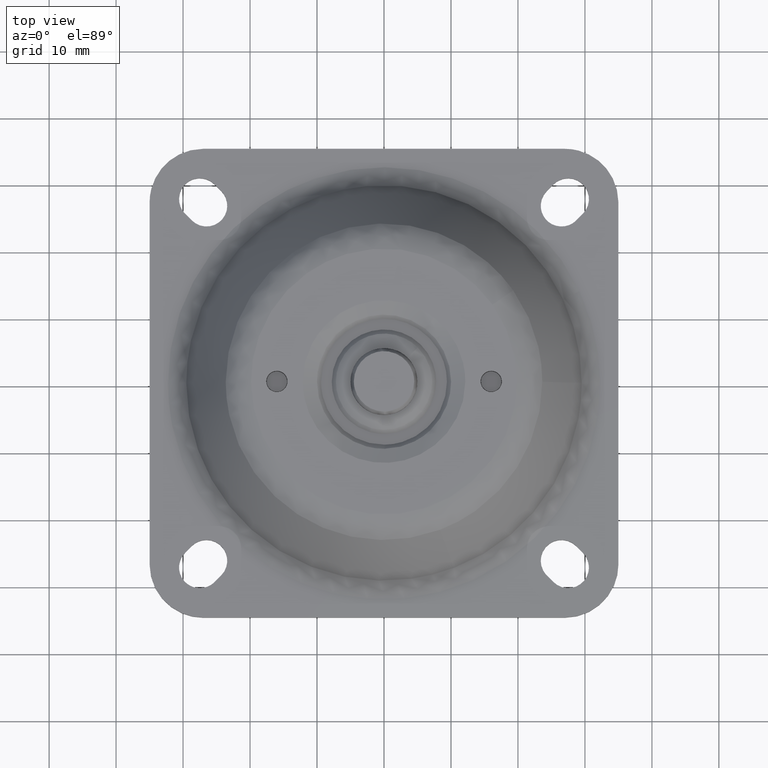
[diagram: clean part render]
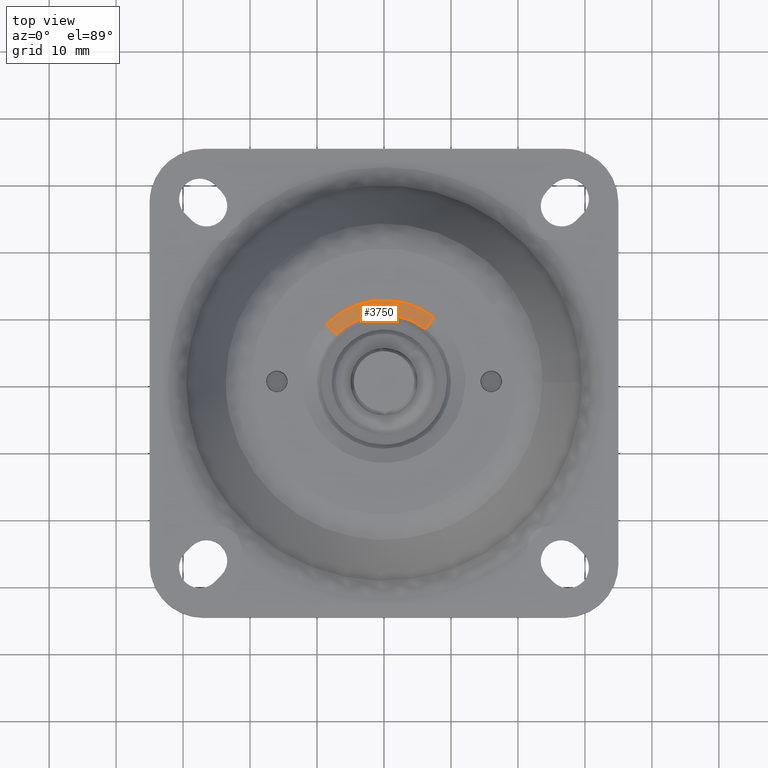
[diagram: same view with one face highlighted and labeled with its STEP entity id]
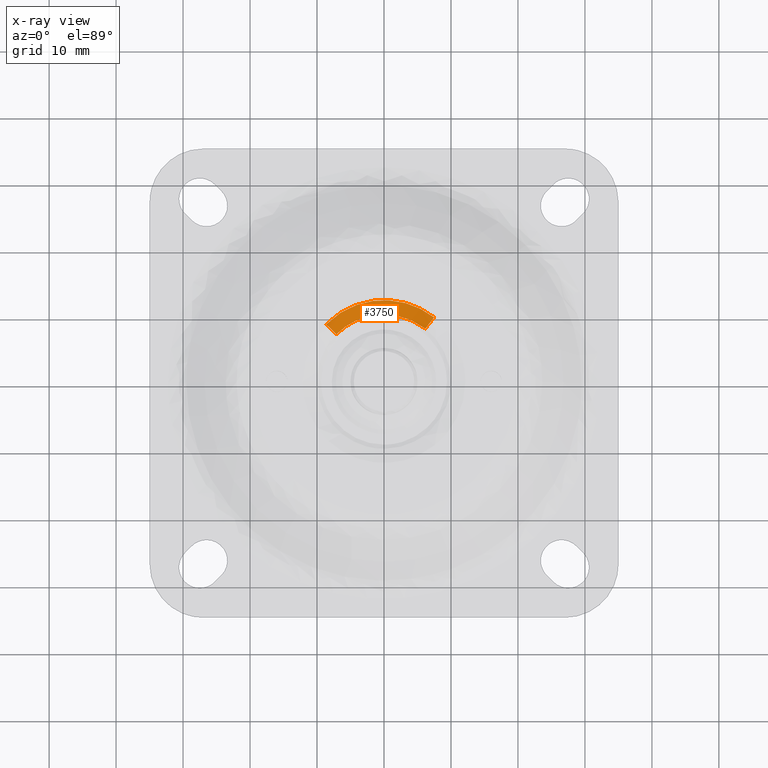
[diagram: x-ray of the same camera — body ghosted, the highlighted face saturated]
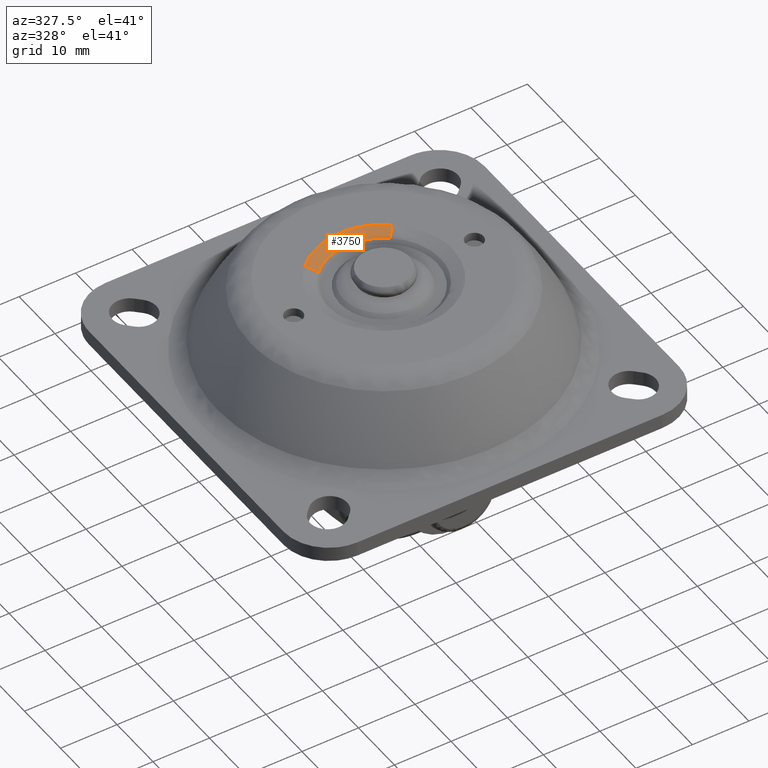
[diagram: same view with one face highlighted and labeled with its STEP entity id]
A machine part, top view. The second image highlights one B-rep face of the part: STEP entity #3750.
The next image is the same camera in x-ray: the body ghosted, the highlighted face saturated — about 0% of this face is hidden behind the body in this view.
A second angle (auxiliary view) of the same face is appended — the face is thin or edge-on in the first view.
In plain terms, the highlighted face is a freeform B-spline surface patch.
Its self-contained STEP definition (entity closure, byte-faithful):
#3266=CARTESIAN_POINT('',(6.171063672578633,7.895874529515886,27.221318343990578));
#3267=VERTEX_POINT('',#3266);
#3281=CARTESIAN_POINT('',(-7.130526957253005,7.041480436814359,27.221318343654978));
#3282=VERTEX_POINT('',#3281);
#3283=CARTESIAN_POINT('',(6.171063672578633,7.895874529515886,27.221318343990575));
#3284=CARTESIAN_POINT('',(3.451556248637276,10.021320343559641,27.221318343559751));
#3285=CARTESIAN_POINT('',(0.0,10.021320343559641,27.221318343559751));
#3286=CARTESIAN_POINT('',(-4.187899499993161,10.021320343559641,27.221318343559741));
#3287=CARTESIAN_POINT('',(-7.130526957253005,7.041480436814359,27.221318343654982));
#3295=(BOUNDED_CURVE()B_SPLINE_CURVE(2,(#3283,#3284,#3285,#3286,#3287),.UNSPECIFIED.,.F.,.U.)B_SPLINE_CURVE_WITH_KNOTS((3,2,3),(0.643432082114102,0.750000000000000,0.875948062567942),.UNSPECIFIED.)CURVE()GEOMETRIC_REPRESENTATION_ITEM()RATIONAL_B_SPLINE_CURVE((0.856737647417090,0.875147918032607,1.0,0.852442666204629,0.853561814883003))REPRESENTATION_ITEM(''));
#3296=EDGE_CURVE('',#3267,#3282,#3295,.T.);
#3635=CARTESIAN_POINT('',(-8.639922064129799,8.532026111801631,28.099998000000099));
#3636=VERTEX_POINT('',#3635);
#3637=CARTESIAN_POINT('',(-7.130526957253005,7.041480436814359,27.221318343654975));
#3638=CARTESIAN_POINT('',(-7.755738881456021,7.658884670683838,28.099997999666368));
#3639=CARTESIAN_POINT('',(-8.639922064129799,8.532026111801631,28.099998000000092));
#3647=(BOUNDED_CURVE()B_SPLINE_CURVE(2,(#3637,#3638,#3639),.UNSPECIFIED.,.F.,.U.)B_SPLINE_CURVE_WITH_KNOTS((3,3),(-1.565382962003858,-0.443824321078704),.UNSPECIFIED.)CURVE()GEOMETRIC_REPRESENTATION_ITEM()RATIONAL_B_SPLINE_CURVE((0.923967181630245,0.853101096541540,0.922813124733921))REPRESENTATION_ITEM(''));
#3648=EDGE_CURVE('',#3282,#3636,#3647,.T.);
#3682=CARTESIAN_POINT('',(7.477358896698282,9.567278964063904,28.099998000000099));
#3683=VERTEX_POINT('',#3682);
#3697=CARTESIAN_POINT('',(6.171063672578633,7.895874529515885,27.221318343990582));
#3698=CARTESIAN_POINT('',(6.712148871026533,8.588192914759743,28.099997999651045));
#3699=CARTESIAN_POINT('',(7.477358896698283,9.567278964063902,28.099998000000095));
#3707=(BOUNDED_CURVE()B_SPLINE_CURVE(2,(#3697,#3698,#3699),.UNSPECIFIED.,.F.,.U.)B_SPLINE_CURVE_WITH_KNOTS((3,3),(-1.565382961539912,-0.443824321096757),.UNSPECIFIED.)CURVE()GEOMETRIC_REPRESENTATION_ITEM()RATIONAL_B_SPLINE_CURVE((0.884131369709628,0.816320596722515,0.883027068739888))REPRESENTATION_ITEM(''));
#3708=EDGE_CURVE('',#3267,#3683,#3707,.T.);
#3713=CARTESIAN_POINT('',(-7.074192822302042,6.985849806487966,27.139073960429027));
#3714=CARTESIAN_POINT('',(-0.853351546400999,13.285359804797467,27.139073960429020));
#3715=CARTESIAN_POINT('',(6.122309697250785,7.833493829503326,27.139073960429020));
#3716=CARTESIAN_POINT('',(-7.740964347219992,7.644294641866935,28.150343534194679));
#3717=CARTESIAN_POINT('',(-0.933783409961615,14.537559149463597,28.150343534194686));
#3718=CARTESIAN_POINT('',(6.699362355468752,8.571832571086226,28.150343534194679));
#3719=CARTESIAN_POINT('',(-8.721242925305360,8.612331432358813,28.097820205054962));
#3720=CARTESIAN_POINT('',(-1.052033260018813,16.378525878238925,28.097820205054951));
#3721=CARTESIAN_POINT('',(7.547737455692023,9.657328313924511,28.097820205054951));
#3729=(BOUNDED_SURFACE()B_SPLINE_SURFACE(2,2,((#3713,#3716,#3719),(#3714,#3717,#3720),(#3715,#3718,#3721)),.UNSPECIFIED.,.F.,.F.,.U.)B_SPLINE_SURFACE_WITH_KNOTS((3,3),(3,3),(0.0,18.662817684242562),(0.0,2.625403718992891),.UNSPECIFIED.)GEOMETRIC_REPRESENTATION_ITEM()RATIONAL_B_SPLINE_SURFACE(((0.931397394286333,0.845728495208841,0.930128113752498),(0.680421411943905,0.617837005301184,0.679494153978312),(0.891241237111544,0.809265856823616,0.890026680188628)))REPRESENTATION_ITEM('')SURFACE());
#3730=ORIENTED_EDGE('',*,*,#3296,.F.);
#3731=ORIENTED_EDGE('',*,*,#3708,.T.);
#3732=CARTESIAN_POINT('',(-8.639922064129799,8.532026111801631,28.099998000000095));
#3733=CARTESIAN_POINT('',(-5.074397097269173,12.142640687119295,28.099998000000102));
#3734=CARTESIAN_POINT('',(0.0,12.142640687119300,28.099998000000099));
#3735=CARTESIAN_POINT('',(4.182184173509501,12.142640687119300,28.099998000000099));
#3736=CARTESIAN_POINT('',(7.477358896698282,9.567278964063904,28.099998000000102));
#3744=(BOUNDED_CURVE()B_SPLINE_CURVE(2,(#3732,#3733,#3734,#3735,#3736),.UNSPECIFIED.,.F.,.U.)B_SPLINE_CURVE_WITH_KNOTS((3,2,3),(0.124051937432100,0.250000000000000,0.356567917885720),.UNSPECIFIED.)CURVE()GEOMETRIC_REPRESENTATION_ITEM()RATIONAL_B_SPLINE_CURVE((0.853561814883002,0.852442666204678,1.0,0.875147918032815,0.856737647417152))REPRESENTATION_ITEM(''));
#3745=EDGE_CURVE('',#3636,#3683,#3744,.T.);
#3746=ORIENTED_EDGE('',*,*,#3745,.F.);
#3747=ORIENTED_EDGE('',*,*,#3648,.F.);
#3748=EDGE_LOOP('',(#3730,#3731,#3746,#3747));
#3749=FACE_OUTER_BOUND('',#3748,.T.);
#3750=ADVANCED_FACE('',(#3749),#3729,.T.);